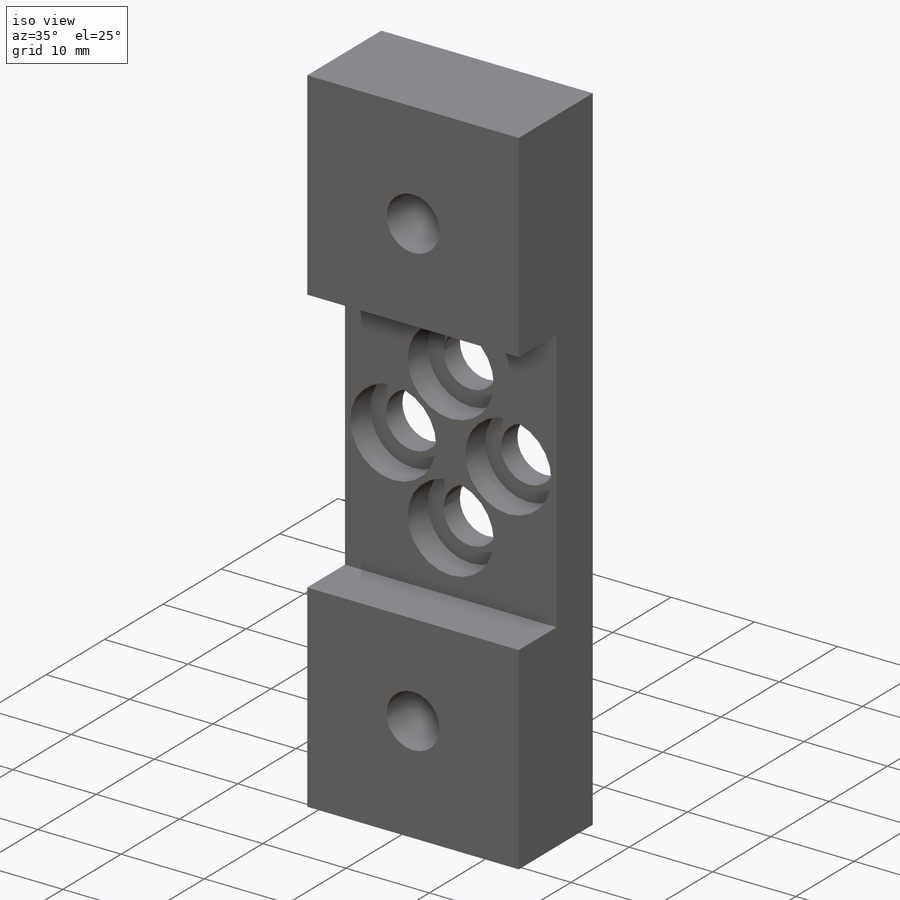
[diagram: iso view]
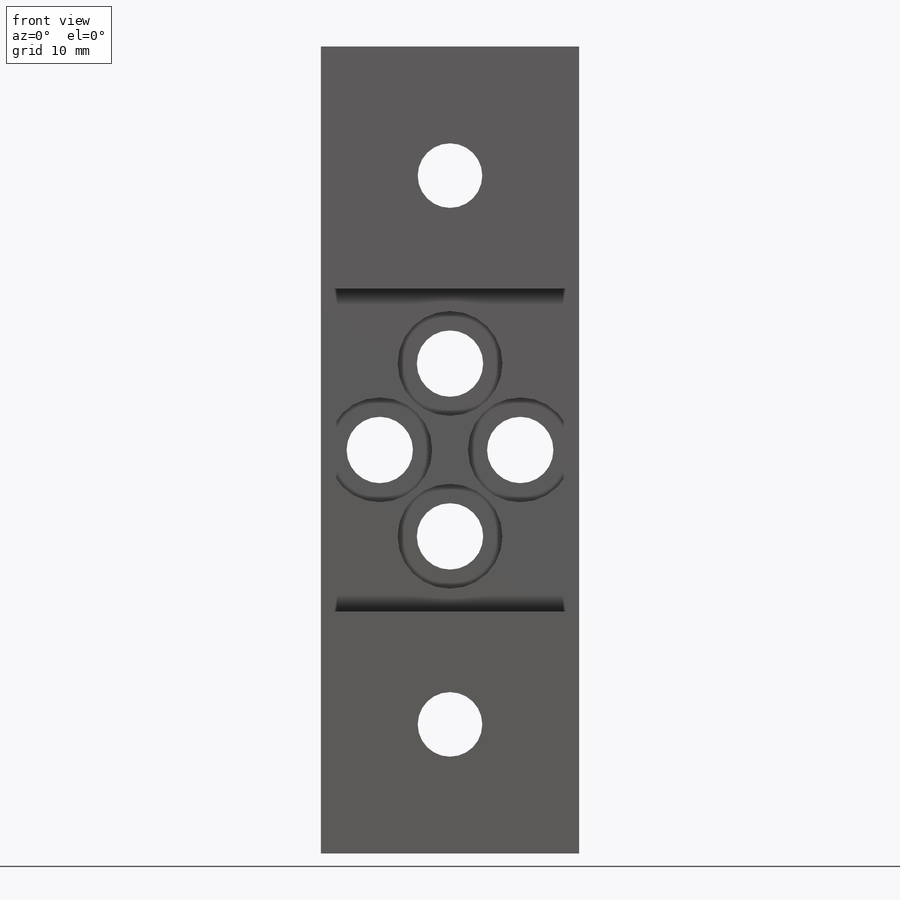
[diagram: front view]
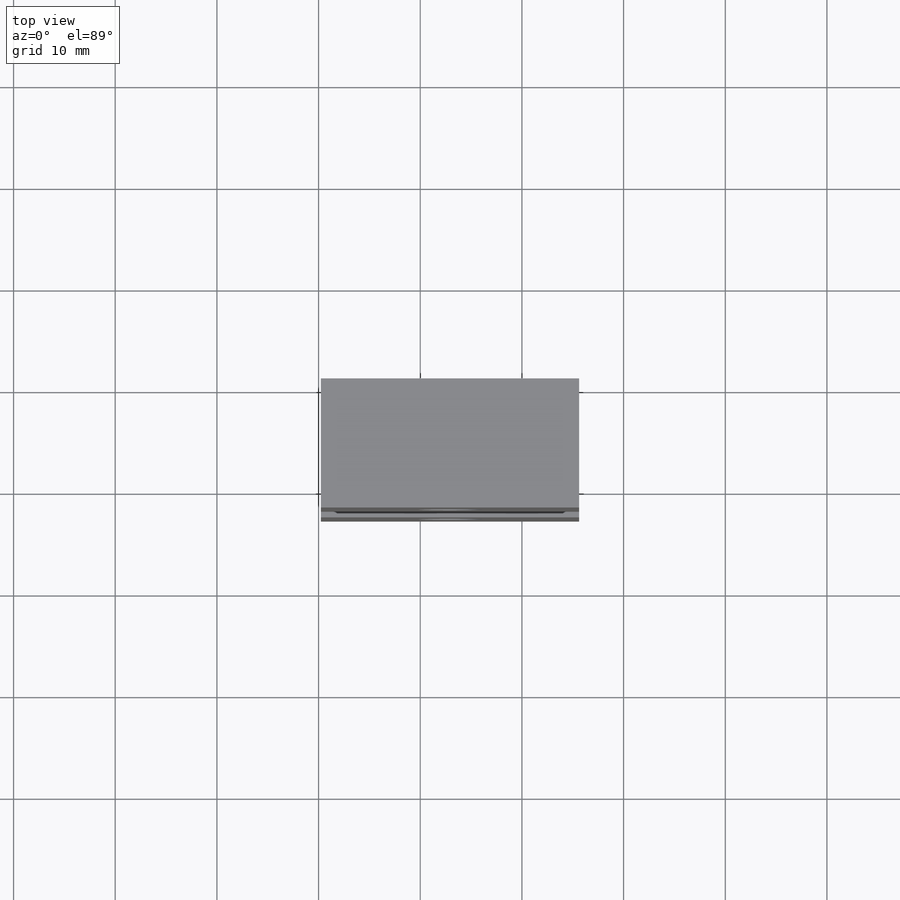
[diagram: top view]
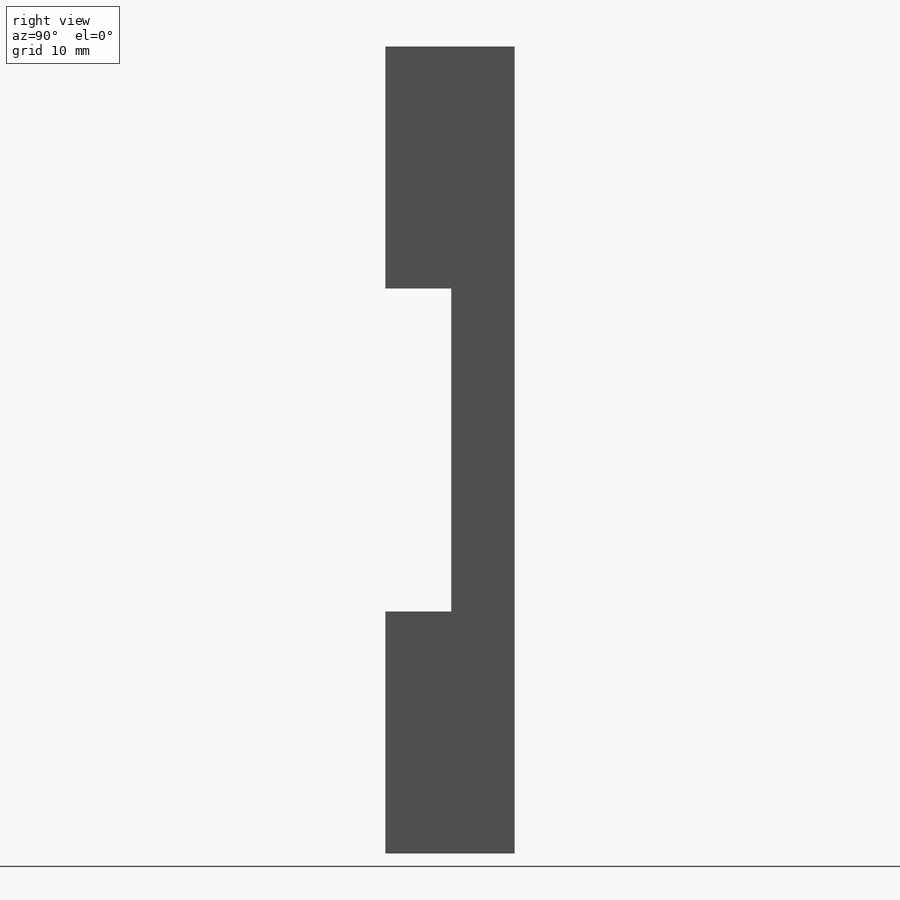
[diagram: right view]
SOLIDWORKS PART (.sldprt)
format: sldprt  version: not decoded by parser v0  size: 228,864 bytes
history: native  units: mm
features: sketch x4, cut_extrude x3, material x1, extrude x1 (+13 scaffold rows collapsed)
feature tree (22):
  scaffold x13  (default folders/planes/origin — collapsed)
  material  "6061 Alloy"
  sketch  "Sketch1"  dims[D1=25.4mm D2=79.375mm]
  extrude  "Extrude1"  Depth=12.7mm
  sketch  "Sketch2"  dims[D1=23.7998mm D2=55.5752mm]
  cut_extrude  "Cut-Extrude1"  Depth=6.477mm
  sketch  "Sketch3"  dims[c1.D3=~4.960038mm c1.D5=~4.921916mm c1.D1=12.7mm c1.D2=12.7mm c2.D1=5.7912mm c2.D2=5.7912mm c2.D3=31.1912mm c2.D4=48.1838mm]
  cut_extrude  "Cut-Extrude2"  [1 undecoded]
  sketch  "Sketch4"  dims[D1=~5.207126mm]
  cut_extrude  "Cut-Extrude3"  Depth=3.429mm
decode coverage: 7 of 8 modeling features carry decoded parameters
note: ~ marks probable driven/reference dimensions
note: 1 parameter value undecoded
note: suppression state not decoded; provenance and decode notes live in map.json
